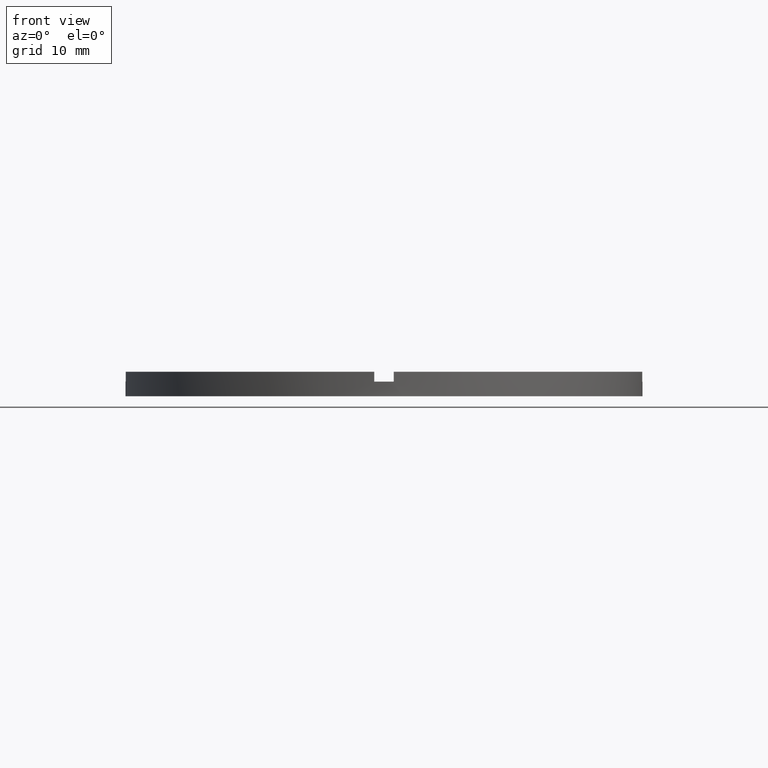
[diagram: clean part render]
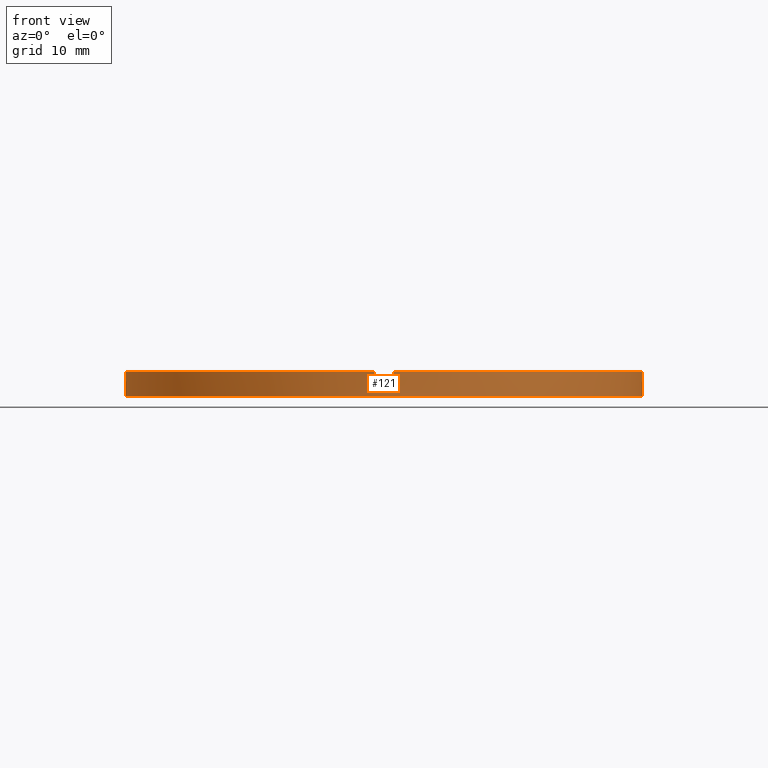
[diagram: same view with one face highlighted and labeled with its STEP entity id]
A machine part, front view. The second image highlights one B-rep face of the part: STEP entity #121.
In plain terms, the highlighted cylindrical surface (partial cylindrical patch) has radius 26.5 mm, axis along (-0, -0, -1).
Its self-contained STEP definition (entity closure, byte-faithful):
#2 = EDGE_CURVE ( 'NONE', #87, #69, #513, .T. ) ;
#6 = DIRECTION ( 'NONE',  ( -0.000000000000000000, -0.000000000000000000, -1.000000000000000000 ) ) ;
#8 = DIRECTION ( 'NONE',  ( -0.000000000000000000, -0.000000000000000000, -1.000000000000000000 ) ) ;
#11 = CARTESIAN_POINT ( 'NONE',  ( -1.000000000000160316, -26.48112535373071807, 2.500000000000000000 ) ) ;
#24 = AXIS2_PLACEMENT_3D ( 'NONE', #158, #213, #151 ) ;
#25 = CARTESIAN_POINT ( 'NONE',  ( 0.9999999999998397948, -26.48112535373072873, 2.500000000000000000 ) ) ;
#28 = CARTESIAN_POINT ( 'NONE',  ( 26.48112535373071807, -1.000000000000157208, 2.500000000000000000 ) ) ;
#48 = CARTESIAN_POINT ( 'NONE',  ( -26.48112535373072163, -1.000000000000026423, 2.500000000000000000 ) ) ;
#55 = CARTESIAN_POINT ( 'NONE',  ( 26.48112535373071807, -1.000000000000157208, 2.500000000000000000 ) ) ;
#62 = CARTESIAN_POINT ( 'NONE',  ( 0.000000000000000000, 0.000000000000000000, 0.000000000000000000 ) ) ;
#69 = VERTEX_POINT ( 'NONE', #544 ) ;
#76 = CARTESIAN_POINT ( 'NONE',  ( 0.000000000000000000, 0.000000000000000000, 2.500000000000000000 ) ) ;
#79 = ORIENTED_EDGE ( 'NONE', *, *, #627, .F. ) ;
#80 = VERTEX_POINT ( 'NONE', #11 ) ;
#82 = EDGE_CURVE ( 'NONE', #347, #337, #462, .T. ) ;
#85 = DIRECTION ( 'NONE',  ( -0.000000000000000000, -0.000000000000000000, -1.000000000000000000 ) ) ;
#87 = VERTEX_POINT ( 'NONE', #25 ) ;
#93 = ORIENTED_EDGE ( 'NONE', *, *, #718, .F. ) ;
#106 = ORIENTED_EDGE ( 'NONE', *, *, #372, .T. ) ;
#113 = CARTESIAN_POINT ( 'NONE',  ( -26.50000000000000355, 0.000000000000000000, 1.500000000000000000 ) ) ;
#121 = ADVANCED_FACE ( 'NONE', ( #176 ), #725, .T. ) ;
#124 = DIRECTION ( 'NONE',  ( 0.000000000000000000, -0.000000000000000000, 1.000000000000000000 ) ) ;
#130 = EDGE_CURVE ( 'NONE', #87, #375, #455, .T. ) ;
#131 = ORIENTED_EDGE ( 'NONE', *, *, #82, .T. ) ;
#144 = DIRECTION ( 'NONE',  ( 0.000000000000000000, 0.000000000000000000, 1.000000000000000000 ) ) ;
#146 = DIRECTION ( 'NONE',  ( 0.000000000000000000, 0.000000000000000000, 1.000000000000000000 ) ) ;
#151 = DIRECTION ( 'NONE',  ( 1.000000000000000000, 0.000000000000000000, 0.000000000000000000 ) ) ;
#153 = CARTESIAN_POINT ( 'NONE',  ( -26.50000000000000355, 0.000000000000000000, 2.500000000000000000 ) ) ;
#158 = CARTESIAN_POINT ( 'NONE',  ( 0.000000000000000000, 0.000000000000000000, 2.500000000000000000 ) ) ;
#163 = CARTESIAN_POINT ( 'NONE',  ( -26.48112535373072163, -1.000000000000026423, 2.500000000000000000 ) ) ;
#169 = EDGE_CURVE ( 'NONE', #605, #342, #458, .T. ) ;
#176 = FACE_OUTER_BOUND ( 'NONE', #593, .T. ) ;
#178 = VECTOR ( 'NONE', #146, 1000.000000000000000 ) ;
#186 = LINE ( 'NONE', #28, #449 ) ;
#191 = AXIS2_PLACEMENT_3D ( 'NONE', #322, #403, #450 ) ;
#194 = DIRECTION ( 'NONE',  ( -1.000000000000000000, 0.000000000000000000, 0.000000000000000000 ) ) ;
#201 = LINE ( 'NONE', #264, #178 ) ;
#211 = VECTOR ( 'NONE', #259, 1000.000000000000000 ) ;
#212 = DIRECTION ( 'NONE',  ( 0.000000000000000000, 0.000000000000000000, 1.000000000000000000 ) ) ;
#213 = DIRECTION ( 'NONE',  ( 0.000000000000000000, 0.000000000000000000, 1.000000000000000000 ) ) ;
#214 = CIRCLE ( 'NONE', #733, 26.50000000000000355 ) ;
#224 = DIRECTION ( 'NONE',  ( 1.000000000000000000, 0.000000000000000000, 0.000000000000000000 ) ) ;
#226 = CARTESIAN_POINT ( 'NONE',  ( 0.000000000000000000, 0.000000000000000000, 1.500000000000000000 ) ) ;
#227 = LINE ( 'NONE', #431, #211 ) ;
#231 = CIRCLE ( 'NONE', #191, 26.50000000000000355 ) ;
#234 = VECTOR ( 'NONE', #6, 1000.000000000000000 ) ;
#259 = DIRECTION ( 'NONE',  ( -0.000000000000000000, -0.000000000000000000, -1.000000000000000000 ) ) ;
#264 = CARTESIAN_POINT ( 'NONE',  ( -1.000000000000160316, -26.48112535373071807, 2.500000000000000000 ) ) ;
#283 = DIRECTION ( 'NONE',  ( 0.000000000000000000, 0.000000000000000000, 1.000000000000000000 ) ) ;
#309 = ORIENTED_EDGE ( 'NONE', *, *, #542, .F. ) ;
#315 = VERTEX_POINT ( 'NONE', #113 ) ;
#321 = VERTEX_POINT ( 'NONE', #163 ) ;
#322 = CARTESIAN_POINT ( 'NONE',  ( 0.000000000000000000, 0.000000000000000000, 1.500000000000000000 ) ) ;
#323 = EDGE_CURVE ( 'NONE', #315, #629, #442, .T. ) ;
#328 = VERTEX_POINT ( 'NONE', #335 ) ;
#335 = CARTESIAN_POINT ( 'NONE',  ( -1.000000000000160316, -26.48112535373071807, 1.500000000000000000 ) ) ;
#336 = ORIENTED_EDGE ( 'NONE', *, *, #515, .T. ) ;
#337 = VERTEX_POINT ( 'NONE', #408 ) ;
#339 = ORIENTED_EDGE ( 'NONE', *, *, #2, .T. ) ;
#342 = VERTEX_POINT ( 'NONE', #548 ) ;
#343 = DIRECTION ( 'NONE',  ( 1.000000000000000000, 0.000000000000000000, 0.000000000000000000 ) ) ;
#347 = VERTEX_POINT ( 'NONE', #740 ) ;
#352 = ORIENTED_EDGE ( 'NONE', *, *, #323, .F. ) ;
#367 = ORIENTED_EDGE ( 'NONE', *, *, #169, .F. ) ;
#372 = EDGE_CURVE ( 'NONE', #328, #80, #201, .T. ) ;
#375 = VERTEX_POINT ( 'NONE', #55 ) ;
#376 = ORIENTED_EDGE ( 'NONE', *, *, #464, .T. ) ;
#387 = AXIS2_PLACEMENT_3D ( 'NONE', #226, #283, #659 ) ;
#403 = DIRECTION ( 'NONE',  ( -0.000000000000000000, 0.000000000000000000, 1.000000000000000000 ) ) ;
#408 = CARTESIAN_POINT ( 'NONE',  ( 26.50000000000000355, 3.245314017740486554E-15, 0.000000000000000000 ) ) ;
#412 = CARTESIAN_POINT ( 'NONE',  ( -26.48112535373072163, -1.000000000000026423, 1.500000000000000000 ) ) ;
#413 = DIRECTION ( 'NONE',  ( 1.000000000000000000, 0.000000000000000000, 0.000000000000000000 ) ) ;
#428 = CARTESIAN_POINT ( 'NONE',  ( 0.000000000000000000, 0.000000000000000000, 2.500000000000000000 ) ) ;
#431 = CARTESIAN_POINT ( 'NONE',  ( 26.50000000000000355, 3.245314017740486554E-15, 2.500000000000000000 ) ) ;
#442 = CIRCLE ( 'NONE', #387, 26.50000000000000355 ) ;
#448 = AXIS2_PLACEMENT_3D ( 'NONE', #530, #124, #413 ) ;
#449 = VECTOR ( 'NONE', #212, 1000.000000000000000 ) ;
#450 = DIRECTION ( 'NONE',  ( 1.000000000000000000, 0.000000000000000000, 0.000000000000000000 ) ) ;
#455 = CIRCLE ( 'NONE', #24, 26.50000000000000355 ) ;
#458 = CIRCLE ( 'NONE', #448, 26.50000000000000355 ) ;
#462 = CIRCLE ( 'NONE', #487, 26.50000000000000355 ) ;
#464 = EDGE_CURVE ( 'NONE', #605, #375, #186, .T. ) ;
#481 = LINE ( 'NONE', #153, #734 ) ;
#487 = AXIS2_PLACEMENT_3D ( 'NONE', #62, #144, #224 ) ;
#513 = LINE ( 'NONE', #750, #773 ) ;
#515 = EDGE_CURVE ( 'NONE', #321, #629, #746, .T. ) ;
#530 = CARTESIAN_POINT ( 'NONE',  ( 0.000000000000000000, 0.000000000000000000, 1.500000000000000000 ) ) ;
#542 = EDGE_CURVE ( 'NONE', #321, #80, #214, .T. ) ;
#544 = CARTESIAN_POINT ( 'NONE',  ( 0.9999999999998397948, -26.48112535373072873, 1.500000000000000000 ) ) ;
#548 = CARTESIAN_POINT ( 'NONE',  ( 26.50000000000000355, 3.245314017740486554E-15, 1.500000000000000000 ) ) ;
#560 = CARTESIAN_POINT ( 'NONE',  ( 26.48112535373071807, -1.000000000000157208, 1.500000000000000000 ) ) ;
#593 = EDGE_LOOP ( 'NONE', ( #93, #367, #376, #601, #339, #79, #106, #309, #336, #352, #647, #131 ) ) ;
#601 = ORIENTED_EDGE ( 'NONE', *, *, #130, .F. ) ;
#605 = VERTEX_POINT ( 'NONE', #560 ) ;
#627 = EDGE_CURVE ( 'NONE', #328, #69, #231, .T. ) ;
#629 = VERTEX_POINT ( 'NONE', #412 ) ;
#647 = ORIENTED_EDGE ( 'NONE', *, *, #757, .T. ) ;
#659 = DIRECTION ( 'NONE',  ( 1.000000000000000000, 0.000000000000000000, 0.000000000000000000 ) ) ;
#689 = DIRECTION ( 'NONE',  ( 0.000000000000000000, 0.000000000000000000, 1.000000000000000000 ) ) ;
#718 = EDGE_CURVE ( 'NONE', #342, #337, #227, .T. ) ;
#722 = DIRECTION ( 'NONE',  ( -0.000000000000000000, -0.000000000000000000, -1.000000000000000000 ) ) ;
#725 = CYLINDRICAL_SURFACE ( 'NONE', #777, 26.50000000000000355 ) ;
#733 = AXIS2_PLACEMENT_3D ( 'NONE', #76, #689, #343 ) ;
#734 = VECTOR ( 'NONE', #722, 1000.000000000000000 ) ;
#740 = CARTESIAN_POINT ( 'NONE',  ( -26.50000000000000355, 0.000000000000000000, 0.000000000000000000 ) ) ;
#746 = LINE ( 'NONE', #48, #234 ) ;
#750 = CARTESIAN_POINT ( 'NONE',  ( 0.9999999999998397948, -26.48112535373072873, 2.500000000000000000 ) ) ;
#757 = EDGE_CURVE ( 'NONE', #315, #347, #481, .T. ) ;
#773 = VECTOR ( 'NONE', #8, 1000.000000000000000 ) ;
#777 = AXIS2_PLACEMENT_3D ( 'NONE', #428, #85, #194 ) ;